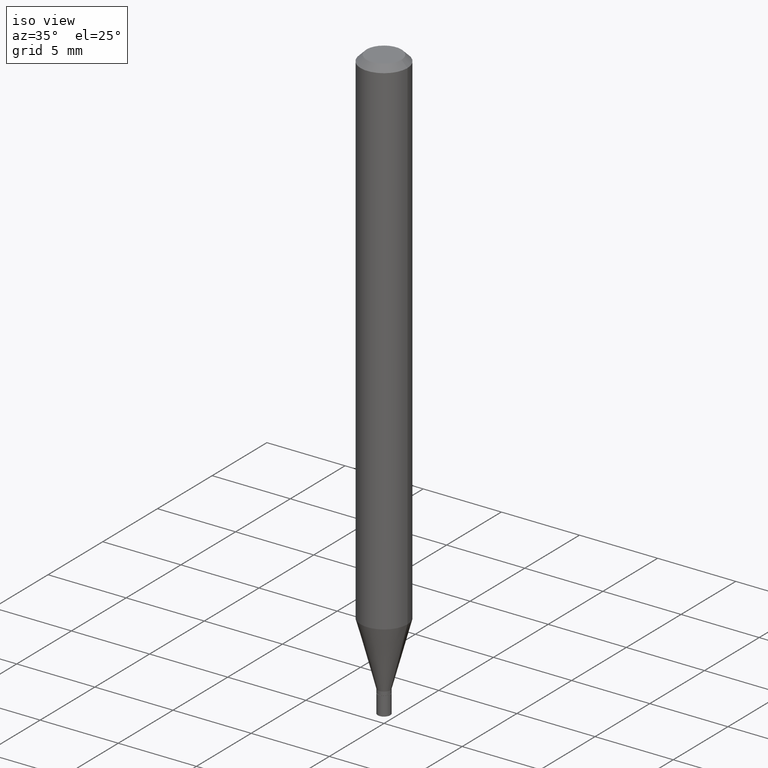
[diagram: clean part render]
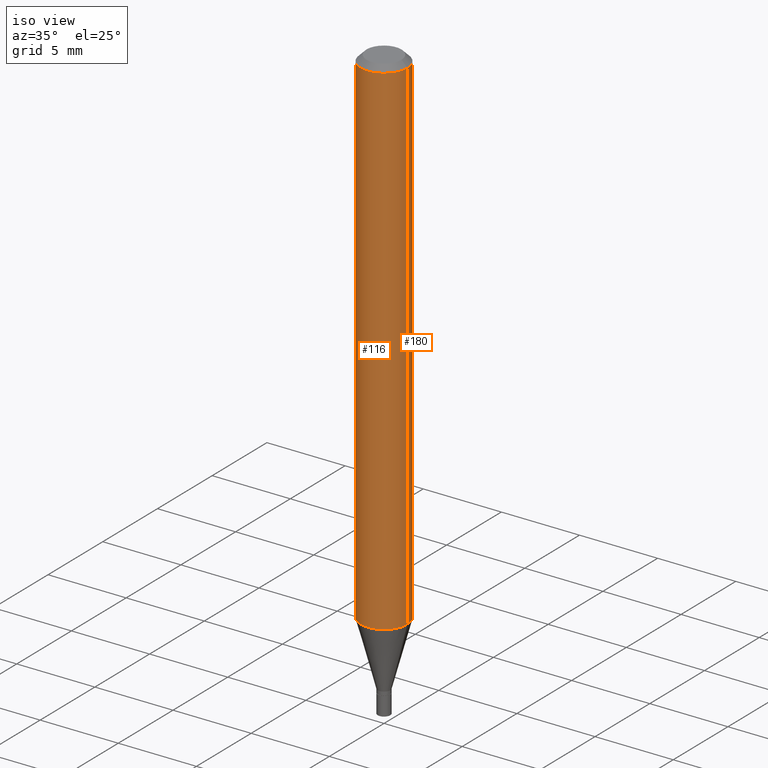
[diagram: same view with one multi-face feature highlighted, each face labeled with its STEP entity id]
A machine part, iso view. The highlighted faces form ONE feature: a constant-radius fillet chain: 2 tangent blend faces with common blend radius 1.4999 mm. The faces share edges in the B-rep.
Their STEP definitions:
[1] entity #116 (Cylinder):
#15 = VERTEX_POINT ( 'NONE', #136 ) ;
#27 = DIRECTION ( 'NONE',  ( -2.445468806185136877E-29, 3.491481338843145188E-15, 1.000000000000000000 ) ) ;
#47 = AXIS2_PLACEMENT_3D ( 'NONE', #189, #223, #88 ) ;
#88 = DIRECTION ( 'NONE',  ( 1.000000000000000000, -6.982962677686266711E-15, 0.000000000000000000 ) ) ;
#92 = CARTESIAN_POINT ( 'NONE',  ( 0.05904999999999999832, -4.123439461173740327E-16, 2.879382386107500220E-30 ) ) ;
#99 = LINE ( 'NONE', #92, #423 ) ;
#111 = CARTESIAN_POINT ( 'NONE',  ( -0.05904999999999999832, 4.195754854663391478E-16, -2.904631170795521892E-30 ) ) ;
#116 = ADVANCED_FACE ( 'NONE', ( #219 ), #245, .T. ) ;
#136 = CARTESIAN_POINT ( 'NONE',  ( 0.05904999999999999832, -4.886335815082588610E-15, -1.281402200032268013 ) ) ;
#150 = DIRECTION ( 'NONE',  ( -2.445468806185136597E-29, 3.491481338843145583E-15, 1.000000000000000000 ) ) ;
#151 = CARTESIAN_POINT ( 'NONE',  ( 0.05904999999999999832, -4.647161662000212105E-16, -0.01499999999999999944 ) ) ;
#162 = AXIS2_PLACEMENT_3D ( 'NONE', #436, #150, #359 ) ;
#167 = VERTEX_POINT ( 'NONE', #151 ) ;
#168 = EDGE_LOOP ( 'NONE', ( #354, #456, #433, #380 ) ) ;
#173 = EDGE_CURVE ( 'NONE', #174, #280, #181, .T. ) ;
#174 = VERTEX_POINT ( 'NONE', #366 ) ;
#181 = LINE ( 'NONE', #111, #258 ) ;
#189 = CARTESIAN_POINT ( 'NONE',  ( 3.668203209277705088E-31, -5.237222008264718399E-17, -0.01499999999999999944 ) ) ;
#200 = AXIS2_PLACEMENT_3D ( 'NONE', #303, #410, #331 ) ;
#219 = FACE_OUTER_BOUND ( 'NONE', #168, .T. ) ;
#220 = DIRECTION ( 'NONE',  ( -2.445468806185136877E-29, 3.491481338843145188E-15, 1.000000000000000000 ) ) ;
#223 = DIRECTION ( 'NONE',  ( -2.445468806185136597E-29, 3.491481338843145583E-15, 1.000000000000000000 ) ) ;
#245 = CYLINDRICAL_SURFACE ( 'NONE', #162, 0.05904999999999999832 ) ;
#258 = VECTOR ( 'NONE', #220, 39.37007874015748143 ) ;
#266 = CARTESIAN_POINT ( 'NONE',  ( -0.05904999999999999832, -1.843606559057592272E-15, -0.01499999999999999944 ) ) ;
#280 = VERTEX_POINT ( 'NONE', #266 ) ;
#288 = CIRCLE ( 'NONE', #47, 0.05904999999999999832 ) ;
#303 = CARTESIAN_POINT ( 'NONE',  ( 3.133629108355918061E-29, -4.473991868965215268E-15, -1.281402200032268013 ) ) ;
#315 = EDGE_CURVE ( 'NONE', #174, #15, #396, .T. ) ;
#331 = DIRECTION ( 'NONE',  ( 1.000000000000000000, -6.982962677686273021E-15, 0.000000000000000000 ) ) ;
#353 = EDGE_CURVE ( 'NONE', #280, #167, #288, .T. ) ;
#354 = ORIENTED_EDGE ( 'NONE', *, *, #173, .F. ) ;
#359 = DIRECTION ( 'NONE',  ( 1.000000000000000000, -6.982962677686266711E-15, 4.876176775795936353E-29 ) ) ;
#366 = CARTESIAN_POINT ( 'NONE',  ( -0.05904999999999999832, -4.054416383498875775E-15, -1.281402200032268013 ) ) ;
#380 = ORIENTED_EDGE ( 'NONE', *, *, #353, .F. ) ;
#396 = CIRCLE ( 'NONE', #200, 0.05904999999999999832 ) ;
#410 = DIRECTION ( 'NONE',  ( -2.445468806185136597E-29, 3.491481338843145583E-15, 1.000000000000000000 ) ) ;
#413 = EDGE_CURVE ( 'NONE', #15, #167, #99, .T. ) ;
#423 = VECTOR ( 'NONE', #27, 39.37007874015748143 ) ;
#433 = ORIENTED_EDGE ( 'NONE', *, *, #413, .T. ) ;
#436 = CARTESIAN_POINT ( 'NONE',  ( 0.000000000000000000, 0.000000000000000000, 0.000000000000000000 ) ) ;
#456 = ORIENTED_EDGE ( 'NONE', *, *, #315, .T. ) ;
[2] entity #180 (Cylinder):
#15 = VERTEX_POINT ( 'NONE', #136 ) ;
#27 = DIRECTION ( 'NONE',  ( -2.445468806185136877E-29, 3.491481338843145188E-15, 1.000000000000000000 ) ) ;
#30 = ORIENTED_EDGE ( 'NONE', *, *, #282, .T. ) ;
#58 = ORIENTED_EDGE ( 'NONE', *, *, #413, .F. ) ;
#86 = CIRCLE ( 'NONE', #279, 0.05904999999999999832 ) ;
#92 = CARTESIAN_POINT ( 'NONE',  ( 0.05904999999999999832, -4.123439461173740327E-16, 2.879382386107500220E-30 ) ) ;
#99 = LINE ( 'NONE', #92, #423 ) ;
#111 = CARTESIAN_POINT ( 'NONE',  ( -0.05904999999999999832, 4.195754854663391478E-16, -2.904631170795521892E-30 ) ) ;
#117 = DIRECTION ( 'NONE',  ( -2.445468806185136597E-29, 3.491481338843145583E-15, 1.000000000000000000 ) ) ;
#136 = CARTESIAN_POINT ( 'NONE',  ( 0.05904999999999999832, -4.886335815082588610E-15, -1.281402200032268013 ) ) ;
#146 = CARTESIAN_POINT ( 'NONE',  ( 0.000000000000000000, 0.000000000000000000, 0.000000000000000000 ) ) ;
#151 = CARTESIAN_POINT ( 'NONE',  ( 0.05904999999999999832, -4.647161662000212105E-16, -0.01499999999999999944 ) ) ;
#167 = VERTEX_POINT ( 'NONE', #151 ) ;
#173 = EDGE_CURVE ( 'NONE', #174, #280, #181, .T. ) ;
#174 = VERTEX_POINT ( 'NONE', #366 ) ;
#176 = CIRCLE ( 'NONE', #307, 0.05904999999999999832 ) ;
#180 = ADVANCED_FACE ( 'NONE', ( #247 ), #318, .T. ) ;
#181 = LINE ( 'NONE', #111, #258 ) ;
#220 = DIRECTION ( 'NONE',  ( -2.445468806185136877E-29, 3.491481338843145188E-15, 1.000000000000000000 ) ) ;
#229 = CARTESIAN_POINT ( 'NONE',  ( 3.668203209277705088E-31, -5.237222008264718399E-17, -0.01499999999999999944 ) ) ;
#247 = FACE_OUTER_BOUND ( 'NONE', #427, .T. ) ;
#258 = VECTOR ( 'NONE', #220, 39.37007874015748143 ) ;
#262 = DIRECTION ( 'NONE',  ( 1.000000000000000000, -6.982962677686273021E-15, 0.000000000000000000 ) ) ;
#266 = CARTESIAN_POINT ( 'NONE',  ( -0.05904999999999999832, -1.843606559057592272E-15, -0.01499999999999999944 ) ) ;
#267 = ORIENTED_EDGE ( 'NONE', *, *, #173, .T. ) ;
#279 = AXIS2_PLACEMENT_3D ( 'NONE', #229, #297, #376 ) ;
#280 = VERTEX_POINT ( 'NONE', #266 ) ;
#282 = EDGE_CURVE ( 'NONE', #15, #174, #176, .T. ) ;
#291 = DIRECTION ( 'NONE',  ( -2.445468806185136597E-29, 3.491481338843145583E-15, 1.000000000000000000 ) ) ;
#297 = DIRECTION ( 'NONE',  ( -2.445468806185136597E-29, 3.491481338843145583E-15, 1.000000000000000000 ) ) ;
#306 = ORIENTED_EDGE ( 'NONE', *, *, #340, .F. ) ;
#307 = AXIS2_PLACEMENT_3D ( 'NONE', #328, #117, #262 ) ;
#318 = CYLINDRICAL_SURFACE ( 'NONE', #431, 0.05904999999999999832 ) ;
#322 = DIRECTION ( 'NONE',  ( 1.000000000000000000, -6.982962677686266711E-15, 4.876176775795936353E-29 ) ) ;
#328 = CARTESIAN_POINT ( 'NONE',  ( 3.133629108355918061E-29, -4.473991868965215268E-15, -1.281402200032268013 ) ) ;
#340 = EDGE_CURVE ( 'NONE', #167, #280, #86, .T. ) ;
#366 = CARTESIAN_POINT ( 'NONE',  ( -0.05904999999999999832, -4.054416383498875775E-15, -1.281402200032268013 ) ) ;
#376 = DIRECTION ( 'NONE',  ( 1.000000000000000000, -6.982962677686266711E-15, 0.000000000000000000 ) ) ;
#413 = EDGE_CURVE ( 'NONE', #15, #167, #99, .T. ) ;
#423 = VECTOR ( 'NONE', #27, 39.37007874015748143 ) ;
#427 = EDGE_LOOP ( 'NONE', ( #30, #267, #306, #58 ) ) ;
#431 = AXIS2_PLACEMENT_3D ( 'NONE', #146, #291, #322 ) ;